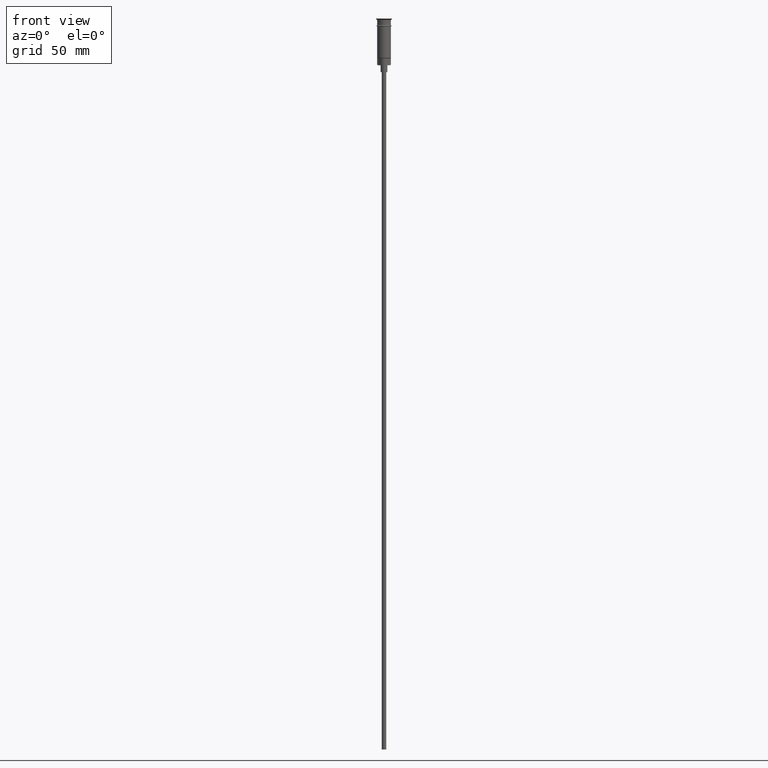
[diagram: clean part render]
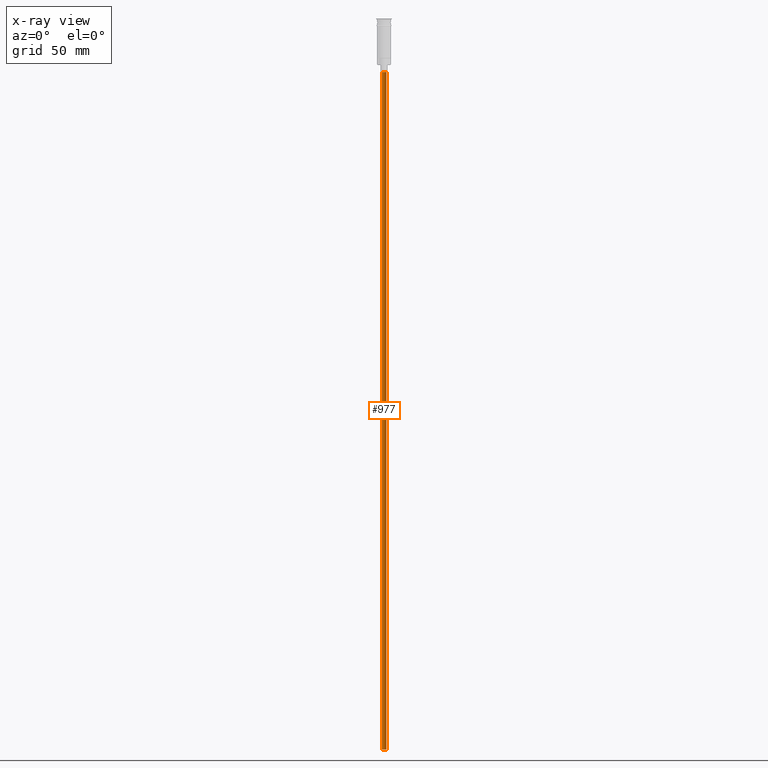
[diagram: x-ray — body ghosted, one internal face saturated and labeled with its STEP entity id]
A machine part, front view, then the same camera in x-ray: the body is ghosted and one INTERNAL B-rep face — a face not visible from any outside direction — is saturated and labeled: STEP entity #977.
In plain terms, the highlighted cylindrical surface (edge-blend (fillet) strip) has radius 1 mm, axis along (-0, -0, 1).
Its self-contained STEP definition (entity closure, byte-faithful):
#17 = DIRECTION ( 'NONE',  ( 0.000000000000000000, 0.000000000000000000, -1.000000000000000000 ) ) ;
#24 = CARTESIAN_POINT ( 'NONE',  ( 0.9999999999999997780, 0.000000000000000000, -23.50000000000000000 ) ) ;
#50 = CARTESIAN_POINT ( 'NONE',  ( -0.9999999999999997780, 1.224646799147352961E-16, -320.5000000000000000 ) ) ;
#129 = EDGE_CURVE ( 'NONE', #1405, #1484, #1163, .T. ) ;
#185 = EDGE_LOOP ( 'NONE', ( #1567, #1387, #751, #342 ) ) ;
#254 = CARTESIAN_POINT ( 'NONE',  ( 0.9999999999999997780, 0.000000000000000000, -320.5000000000000000 ) ) ;
#291 = VECTOR ( 'NONE', #639, 1000.000000000000000 ) ;
#342 = ORIENTED_EDGE ( 'NONE', *, *, #684, .F. ) ;
#366 = CARTESIAN_POINT ( 'NONE',  ( 0.000000000000000000, 0.000000000000000000, -320.5000000000000000 ) ) ;
#417 = LINE ( 'NONE', #1526, #1091 ) ;
#617 = DIRECTION ( 'NONE',  ( -1.000000000000000000, 0.000000000000000000, 0.000000000000000000 ) ) ;
#622 = AXIS2_PLACEMENT_3D ( 'NONE', #997, #17, #617 ) ;
#639 = DIRECTION ( 'NONE',  ( -0.000000000000000000, -0.000000000000000000, 1.000000000000000000 ) ) ;
#660 = EDGE_CURVE ( 'NONE', #976, #1054, #1242, .T. ) ;
#684 = EDGE_CURVE ( 'NONE', #1054, #1484, #417, .T. ) ;
#744 = EDGE_CURVE ( 'NONE', #976, #1405, #763, .T. ) ;
#751 = ORIENTED_EDGE ( 'NONE', *, *, #129, .T. ) ;
#763 = LINE ( 'NONE', #50, #291 ) ;
#846 = DIRECTION ( 'NONE',  ( 1.000000000000000000, 0.000000000000000000, 0.000000000000000000 ) ) ;
#870 = CARTESIAN_POINT ( 'NONE',  ( -0.9999999999999997780, 1.224646799147352961E-16, -320.5000000000000000 ) ) ;
#976 = VERTEX_POINT ( 'NONE', #870 ) ;
#977 = ADVANCED_FACE ( 'NONE', ( #1229 ), #994, .T. ) ;
#980 = DIRECTION ( 'NONE',  ( -1.000000000000000000, 0.000000000000000000, 0.000000000000000000 ) ) ;
#994 = CYLINDRICAL_SURFACE ( 'NONE', #1038, 0.9999999999999997780 ) ;
#997 = CARTESIAN_POINT ( 'NONE',  ( 0.000000000000000000, 0.000000000000000000, -23.50000000000000000 ) ) ;
#1038 = AXIS2_PLACEMENT_3D ( 'NONE', #1092, #1592, #846 ) ;
#1054 = VERTEX_POINT ( 'NONE', #254 ) ;
#1091 = VECTOR ( 'NONE', #1384, 1000.000000000000000 ) ;
#1092 = CARTESIAN_POINT ( 'NONE',  ( 0.000000000000000000, 0.000000000000000000, -320.5000000000000000 ) ) ;
#1163 = CIRCLE ( 'NONE', #622, 0.9999999999999997780 ) ;
#1229 = FACE_OUTER_BOUND ( 'NONE', #185, .T. ) ;
#1242 = CIRCLE ( 'NONE', #1454, 0.9999999999999997780 ) ;
#1343 = DIRECTION ( 'NONE',  ( 0.000000000000000000, 0.000000000000000000, -1.000000000000000000 ) ) ;
#1362 = CARTESIAN_POINT ( 'NONE',  ( -0.9999999999999997780, 1.224646799147352961E-16, -23.50000000000000000 ) ) ;
#1384 = DIRECTION ( 'NONE',  ( -0.000000000000000000, -0.000000000000000000, 1.000000000000000000 ) ) ;
#1387 = ORIENTED_EDGE ( 'NONE', *, *, #744, .T. ) ;
#1405 = VERTEX_POINT ( 'NONE', #1362 ) ;
#1454 = AXIS2_PLACEMENT_3D ( 'NONE', #366, #1343, #980 ) ;
#1484 = VERTEX_POINT ( 'NONE', #24 ) ;
#1526 = CARTESIAN_POINT ( 'NONE',  ( 0.9999999999999997780, 0.000000000000000000, -320.5000000000000000 ) ) ;
#1567 = ORIENTED_EDGE ( 'NONE', *, *, #660, .F. ) ;
#1592 = DIRECTION ( 'NONE',  ( -0.000000000000000000, -0.000000000000000000, 1.000000000000000000 ) ) ;